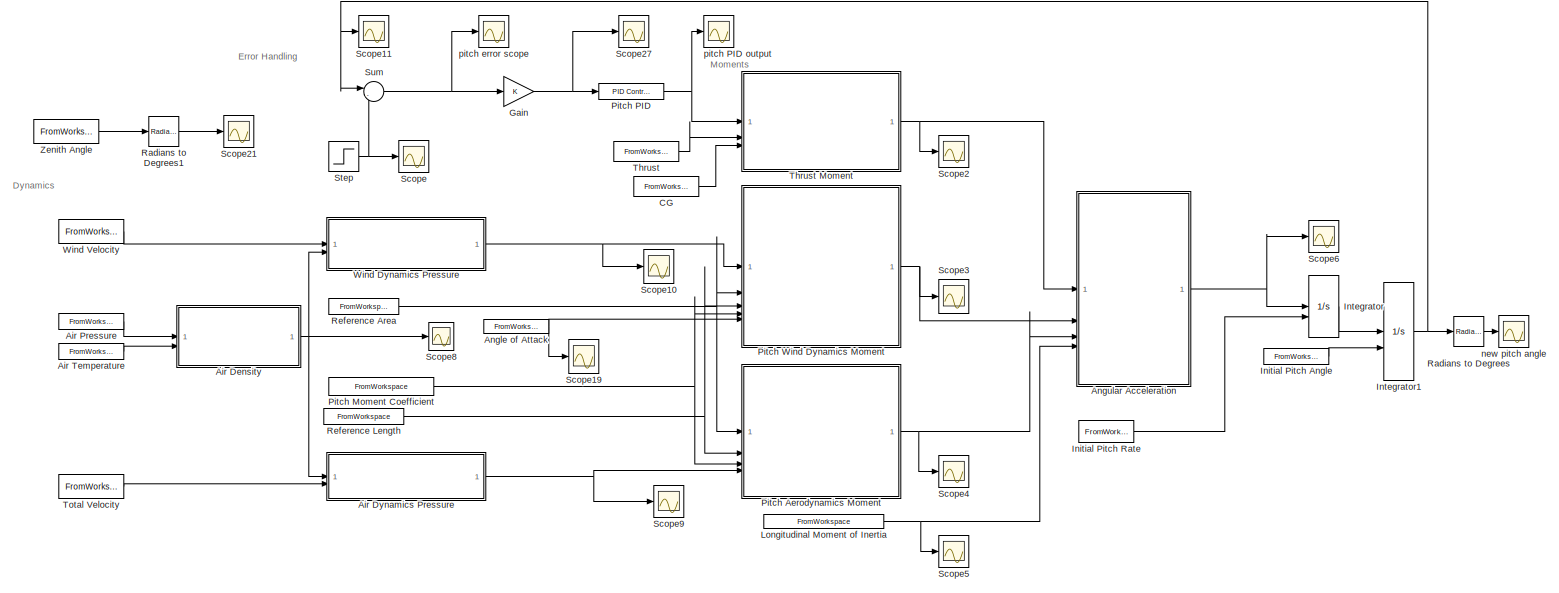
[diagram: root canvas - part 1/2, full width, top band]
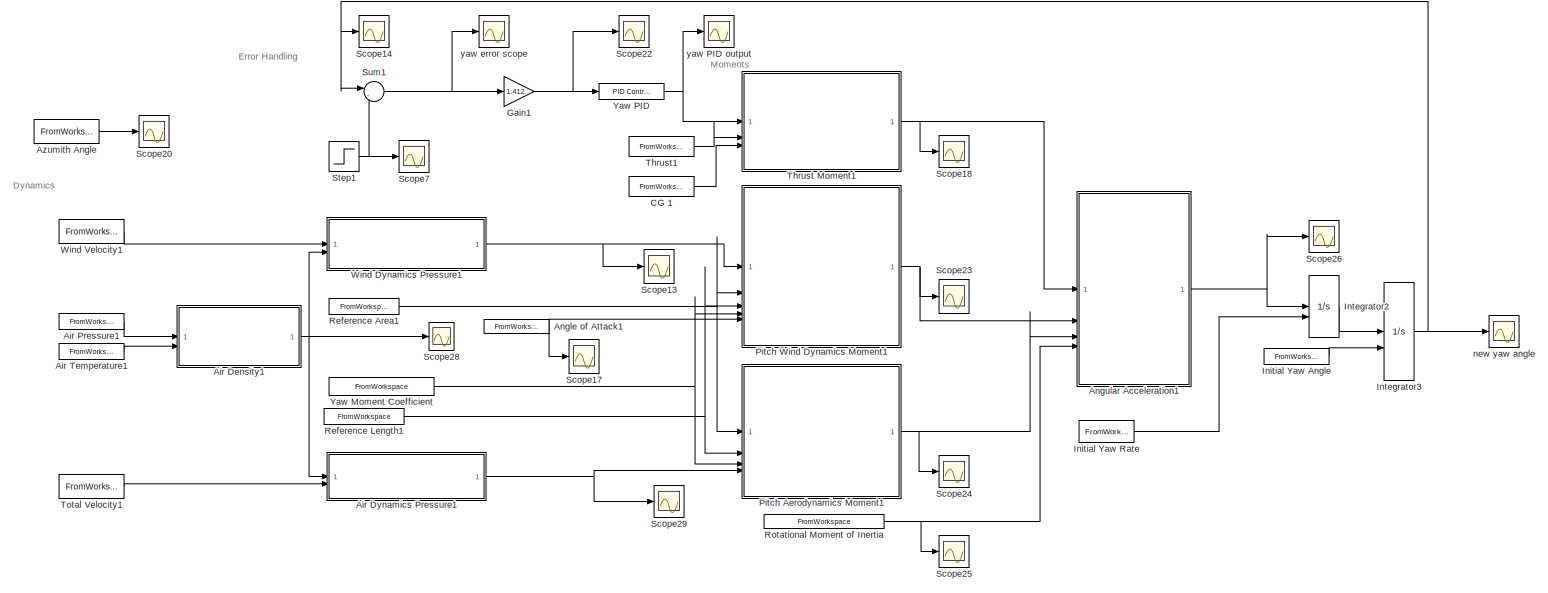
[diagram: root canvas - part 2/2, full width, bottom band]
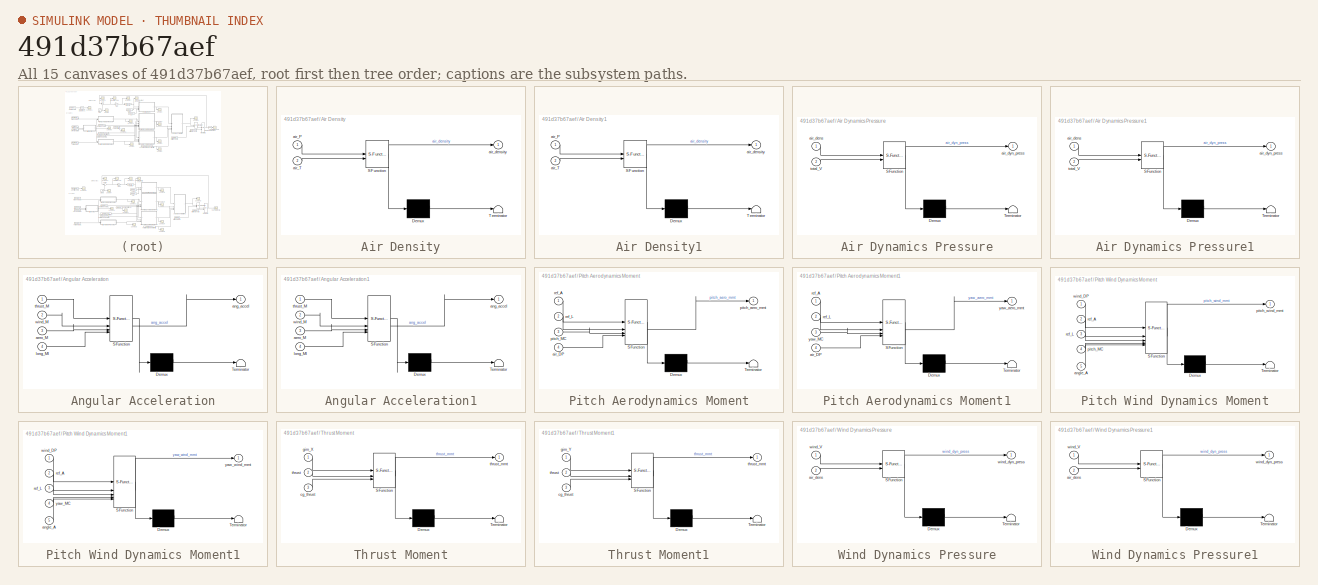
[diagram: thumbnail index - all 15 canvases of the model, root first then tree order]
MODEL slx_491d37b67aef
KIND model
CONFIG AbsTol = auto
CONFIG EnableMultiTasking = off
CONFIG FixedStep = auto
CONFIG MaxStep = auto
CONFIG MinStep = auto
CONFIG RelTol = 1e-3
CONFIG SampleTimeConstraint = Unconstrained
CONFIG SolverName = VariableStepAuto
CONFIG StartTime = 0.0
CONFIG StopTime = 1.7
BLOCK [SubSystem] Air Density
  ErrorFcn = Stateflow.Translate.translate
  PermitHierarchicalResolution = ExplicitOnly
  SFBlockType = MATLAB Function
  TreatAsAtomicUnit = on
BLOCK [Demux] Air Density/ Demux 
  Outputs = 1
BLOCK [S-Function] Air Density/ SFunction 
  EnableBusSupport = on
  FunctionName = sf_sfun
  PortCounts = [2 2]
  SFcnIsStateOwnerBlock = off
  SFunctionDeploymentMode = off
  Tag = Stateflow S-Function 2
BLOCK [Terminator] Air Density/ Terminator 
BLOCK [Inport] Air Density/air_P
BLOCK [Inport] Air Density/air_T
  Port = 2
BLOCK [Outport] Air Density/air_density
BLOCK [SubSystem] Air Density1
  ErrorFcn = Stateflow.Translate.translate
  PermitHierarchicalResolution = ExplicitOnly
  SFBlockType = MATLAB Function
  TreatAsAtomicUnit = on
BLOCK [Demux] Air Density1/ Demux 
  Outputs = 1
BLOCK [S-Function] Air Density1/ SFunction 
  EnableBusSupport = on
  FunctionName = sf_sfun
  PortCounts = [2 2]
  SFcnIsStateOwnerBlock = off
  SFunctionDeploymentMode = off
  Tag = Stateflow S-Function 8
BLOCK [Terminator] Air Density1/ Terminator 
BLOCK [Inport] Air Density1/air_P
BLOCK [Inport] Air Density1/air_T
  Port = 2
BLOCK [Outport] Air Density1/air_density
BLOCK [SubSystem] Air Dynamics Pressure
  ErrorFcn = Stateflow.Translate.translate
  PermitHierarchicalResolution = ExplicitOnly
  SFBlockType = MATLAB Function
  TreatAsAtomicUnit = on
BLOCK [Demux] Air Dynamics Pressure/ Demux 
  Outputs = 1
BLOCK [S-Function] Air Dynamics Pressure/ SFunction 
  EnableBusSupport = on
  FunctionName = sf_sfun
  PortCounts = [2 2]
  SFcnIsStateOwnerBlock = off
  SFunctionDeploymentMode = off
  Tag = Stateflow S-Function 1
BLOCK [Terminator] Air Dynamics Pressure/ Terminator 
BLOCK [Inport] Air Dynamics Pressure/air_dens
BLOCK [Outport] Air Dynamics Pressure/air_dyn_press
BLOCK [Inport] Air Dynamics Pressure/total_V
  Port = 2
BLOCK [SubSystem] Air Dynamics Pressure1
  ErrorFcn = Stateflow.Translate.translate
  PermitHierarchicalResolution = ExplicitOnly
  SFBlockType = MATLAB Function
  TreatAsAtomicUnit = on
BLOCK [Demux] Air Dynamics Pressure1/ Demux 
  Outputs = 1
BLOCK [S-Function] Air Dynamics Pressure1/ SFunction 
  EnableBusSupport = on
  FunctionName = sf_sfun
  PortCounts = [2 2]
  SFcnIsStateOwnerBlock = off
  SFunctionDeploymentMode = off
  Tag = Stateflow S-Function 9
BLOCK [Terminator] Air Dynamics Pressure1/ Terminator 
BLOCK [Inport] Air Dynamics Pressure1/air_dens
BLOCK [Outport] Air Dynamics Pressure1/air_dyn_press
BLOCK [Inport] Air Dynamics Pressure1/total_V
  Port = 2
BLOCK [FromWorkspace] Air Pressure
  VariableName = air_press
BLOCK [FromWorkspace] Air Pressure1
  VariableName = air_press
BLOCK [FromWorkspace] Air Temperature
  VariableName = air_temp
BLOCK [FromWorkspace] Air Temperature1
  VariableName = air_temp
BLOCK [FromWorkspace] Angle of Attack
  VariableName = AoA
BLOCK [FromWorkspace] Angle of Attack1
  VariableName = AoA
BLOCK [SubSystem] Angular Acceleration
  ErrorFcn = Stateflow.Translate.translate
  PermitHierarchicalResolution = ExplicitOnly
  SFBlockType = MATLAB Function
  TreatAsAtomicUnit = on
BLOCK [Demux] Angular Acceleration/ Demux 
  Outputs = 1
BLOCK [S-Function] Angular Acceleration/ SFunction 
  EnableBusSupport = on
  FunctionName = sf_sfun
  PortCounts = [4 2]
  SFcnIsStateOwnerBlock = off
  SFunctionDeploymentMode = off
  Tag = Stateflow S-Function 7
BLOCK [Terminator] Angular Acceleration/ Terminator 
BLOCK [Inport] Angular Acceleration/aero_M
  Port = 3
BLOCK [Outport] Angular Acceleration/ang_accel
BLOCK [Inport] Angular Acceleration/long_MI
  Port = 4
BLOCK [Inport] Angular Acceleration/thrust_M
BLOCK [Inport] Angular Acceleration/wind_M
  Port = 2
BLOCK [SubSystem] Angular Acceleration1
  ErrorFcn = Stateflow.Translate.translate
  PermitHierarchicalResolution = ExplicitOnly
  SFBlockType = MATLAB Function
  TreatAsAtomicUnit = on
BLOCK [Demux] Angular Acceleration1/ Demux 
  Outputs = 1
BLOCK [S-Function] Angular Acceleration1/ SFunction 
  EnableBusSupport = on
  FunctionName = sf_sfun
  PortCounts = [4 2]
  SFcnIsStateOwnerBlock = off
  SFunctionDeploymentMode = off
  Tag = Stateflow S-Function 10
BLOCK [Terminator] Angular Acceleration1/ Terminator 
BLOCK [Inport] Angular Acceleration1/aero_M
  Port = 3
BLOCK [Outport] Angular Acceleration1/ang_accel
BLOCK [Inport] Angular Acceleration1/long_MI
  Port = 4
BLOCK [Inport] Angular Acceleration1/thrust_M
BLOCK [Inport] Angular Acceleration1/wind_M
  Port = 2
BLOCK [FromWorkspace] Azumith Angle
  VariableName = theta_azimuth
BLOCK [FromWorkspace] CG 
  VariableName = CG_location
BLOCK [FromWorkspace] CG 1
  VariableName = CG_location
BLOCK [Gain] Gain
BLOCK [Gain] Gain1
  Gain = 1.412
BLOCK [FromWorkspace] Initial Pitch Angle
  VariableName = init_pitch_angle
BLOCK [FromWorkspace] Initial Pitch Rate
  VariableName = init_pitch_rate
BLOCK [FromWorkspace] Initial Yaw Angle
  VariableName = init_yaw_angle
BLOCK [FromWorkspace] Initial Yaw Rate
  VariableName = init_yaw_rate
BLOCK [Integrator] Integrator
  InitialConditionSource = external
BLOCK [Integrator] Integrator1
  InitialConditionSource = external
BLOCK [Integrator] Integrator2
  InitialConditionSource = external
BLOCK [Integrator] Integrator3
  InitialConditionSource = external
BLOCK [FromWorkspace] Longitudinal Moment of Inertia
  VariableName = long_moment_inert
BLOCK [SubSystem] Pitch Aerodynamics Moment
  ErrorFcn = Stateflow.Translate.translate
  PermitHierarchicalResolution = ExplicitOnly
  SFBlockType = MATLAB Function
  TreatAsAtomicUnit = on
BLOCK [Demux] Pitch Aerodynamics Moment/ Demux 
  Outputs = 1
BLOCK [S-Function] Pitch Aerodynamics Moment/ SFunction 
  EnableBusSupport = on
  FunctionName = sf_sfun
  PortCounts = [4 2]
  SFcnIsStateOwnerBlock = off
  SFunctionDeploymentMode = off
  Tag = Stateflow S-Function 5
BLOCK [Terminator] Pitch Aerodynamics Moment/ Terminator 
BLOCK [Inport] Pitch Aerodynamics Moment/air_DP
  Port = 4
BLOCK [Inport] Pitch Aerodynamics Moment/pitch_MC
  Port = 3
BLOCK [Outport] Pitch Aerodynamics Moment/pitch_aero_mmt
BLOCK [Inport] Pitch Aerodynamics Moment/ref_A
BLOCK [Inport] Pitch Aerodynamics Moment/ref_L
  Port = 2
BLOCK [SubSystem] Pitch Aerodynamics Moment1
  ErrorFcn = Stateflow.Translate.translate
  PermitHierarchicalResolution = ExplicitOnly
  SFBlockType = MATLAB Function
  TreatAsAtomicUnit = on
BLOCK [Demux] Pitch Aerodynamics Moment1/ Demux 
  Outputs = 1
BLOCK [S-Function] Pitch Aerodynamics Moment1/ SFunction 
  EnableBusSupport = on
  FunctionName = sf_sfun
  PortCounts = [4 2]
  SFcnIsStateOwnerBlock = off
  SFunctionDeploymentMode = off
  Tag = Stateflow S-Function 11
BLOCK [Terminator] Pitch Aerodynamics Moment1/ Terminator 
BLOCK [Inport] Pitch Aerodynamics Moment1/air_DP
  Port = 4
BLOCK [Inport] Pitch Aerodynamics Moment1/ref_A
BLOCK [Inport] Pitch Aerodynamics Moment1/ref_L
  Port = 2
BLOCK [Inport] Pitch Aerodynamics Moment1/yaw_MC
  Port = 3
BLOCK [Outport] Pitch Aerodynamics Moment1/yaw_aero_mmt
BLOCK [FromWorkspace] Pitch Moment Coefficient
  VariableName = pitch_moment_coeff
BLOCK [Reference] Pitch PID  REF=slpidlib/PID Controller
  LibrarySourceBlock = simulink/Continuous/PID Controller
  SourceBlock = slpidlib/PID Controller
  SourceType = PID 1dof
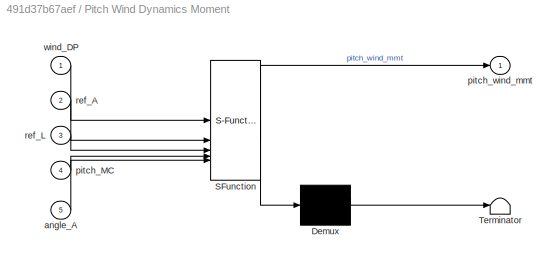
BLOCK [SubSystem] Pitch Wind Dynamics Moment
  ErrorFcn = Stateflow.Translate.translate
  PermitHierarchicalResolution = ExplicitOnly
  SFBlockType = MATLAB Function
  TreatAsAtomicUnit = on
BLOCK [Demux] Pitch Wind Dynamics Moment/ Demux 
  Outputs = 1
BLOCK [S-Function] Pitch Wind Dynamics Moment/ SFunction 
  EnableBusSupport = on
  FunctionName = sf_sfun
  PortCounts = [5 2]
  SFcnIsStateOwnerBlock = off
  SFunctionDeploymentMode = off
  Tag = Stateflow S-Function 4
BLOCK [Terminator] Pitch Wind Dynamics Moment/ Terminator 
BLOCK [Inport] Pitch Wind Dynamics Moment/angle_A
  Port = 5
BLOCK [Inport] Pitch Wind Dynamics Moment/pitch_MC
  Port = 4
BLOCK [Outport] Pitch Wind Dynamics Moment/pitch_wind_mmt
BLOCK [Inport] Pitch Wind Dynamics Moment/ref_A
  Port = 2
BLOCK [Inport] Pitch Wind Dynamics Moment/ref_L
  Port = 3
BLOCK [Inport] Pitch Wind Dynamics Moment/wind_DP
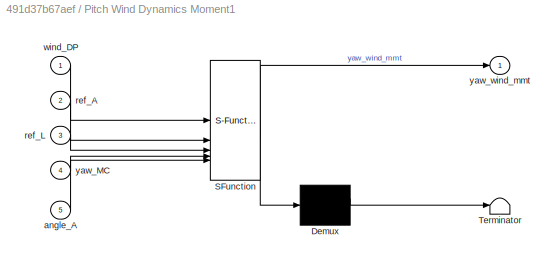
BLOCK [SubSystem] Pitch Wind Dynamics Moment1
  ErrorFcn = Stateflow.Translate.translate
  PermitHierarchicalResolution = ExplicitOnly
  SFBlockType = MATLAB Function
  TreatAsAtomicUnit = on
BLOCK [Demux] Pitch Wind Dynamics Moment1/ Demux 
  Outputs = 1
BLOCK [S-Function] Pitch Wind Dynamics Moment1/ SFunction 
  EnableBusSupport = on
  FunctionName = sf_sfun
  PortCounts = [5 2]
  SFcnIsStateOwnerBlock = off
  SFunctionDeploymentMode = off
  Tag = Stateflow S-Function 12
BLOCK [Terminator] Pitch Wind Dynamics Moment1/ Terminator 
BLOCK [Inport] Pitch Wind Dynamics Moment1/angle_A
  Port = 5
BLOCK [Inport] Pitch Wind Dynamics Moment1/ref_A
  Port = 2
BLOCK [Inport] Pitch Wind Dynamics Moment1/ref_L
  Port = 3
BLOCK [Inport] Pitch Wind Dynamics Moment1/wind_DP
BLOCK [Inport] Pitch Wind Dynamics Moment1/yaw_MC
  Port = 4
BLOCK [Outport] Pitch Wind Dynamics Moment1/yaw_wind_mmt
BLOCK [Reference] Radians to Degrees  REF=simulink_extras/Transformations/Radians
to Degrees
  SourceBlock = simulink_extras/Transformations/Radians\nto Degrees
  SourceType = RadiansToDegrees
BLOCK [Reference] Radians to Degrees1  REF=simulink_extras/Transformations/Radians
to Degrees
  SourceBlock = simulink_extras/Transformations/Radians\nto Degrees
  SourceType = RadiansToDegrees
BLOCK [FromWorkspace] Reference Area
  VariableName = ref_area
BLOCK [FromWorkspace] Reference Area1
  VariableName = ref_area
BLOCK [FromWorkspace] Reference Length
  VariableName = ref_length
BLOCK [FromWorkspace] Reference Length1
  VariableName = ref_length
BLOCK [FromWorkspace] Rotational Moment of Inertia
  VariableName = rot_moment_inert
BLOCK [Scope] Scope
  Floating = off
  NumInputPorts = 1
  ScopeSpecificationString = Simulink.scopes.TimeScopeBlockCfg('CurrentConfiguration', extmgr.ConfigurationSet(extmgr.Configuration('Core','General UI',true),extmgr.Configuration('Core','Source UI',true),extmgr.Configuration('Sources','WiredSimulink',true,'DataLoggingVariableName','ScopeData2'),extmgr.Configuration('Visuals','Time Domain',true,'SerializedDisplays',{struct('MinYLimReal','0.78008','MaxYLimReal','0.78866','YLabe...<+1535ch>
BLOCK [Scope] Scope10
  Floating = off
  NumInputPorts = 1
  ScopeSpecificationString = Simulink.scopes.TimeScopeBlockCfg('CurrentConfiguration', extmgr.ConfigurationSet(extmgr.Configuration('Core','General UI',true),extmgr.Configuration('Core','Source UI',true),extmgr.Configuration('Sources','WiredSimulink',true,'DataLoggingVariableName','ScopeData9'),extmgr.Configuration('Visuals','Time Domain',true,'SerializedDisplays',{struct('MinYLimReal','2.00036','MaxYLimReal','2.7141','YLabel...<+1493ch>
BLOCK [Scope] Scope11
  Floating = off
  NumInputPorts = 1
  ScopeSpecificationString = Simulink.scopes.TimeScopeBlockCfg('CurrentConfiguration', extmgr.ConfigurationSet(extmgr.Configuration('Core','General UI',true),extmgr.Configuration('Core','Source UI',true),extmgr.Configuration('Sources','WiredSimulink',true,'DataLoggingVariableName','ScopeData10'),extmgr.Configuration('Visuals','Time Domain',true,'SerializedDisplays',{struct('MinYLimReal','-97.73296','MaxYLimReal','12.60437','Y...<+1493ch>
BLOCK [Scope] Scope13
  Floating = off
  NumInputPorts = 1
  ScopeSpecificationString = Simulink.scopes.TimeScopeBlockCfg('CurrentConfiguration', extmgr.ConfigurationSet(extmgr.Configuration('Core','General UI',true),extmgr.Configuration('Core','Source UI',true),extmgr.Configuration('Sources','WiredSimulink',true,'DataLoggingVariableName','ScopeData2'),extmgr.Configuration('Visuals','Time Domain',true,'SerializedDisplays',{struct('MinYLimReal','2.00036','MaxYLimReal','2.7141','YLabel...<+1493ch>
BLOCK [Scope] Scope14
  Floating = off
  NumInputPorts = 1
  ScopeSpecificationString = Simulink.scopes.TimeScopeBlockCfg('CurrentConfiguration', extmgr.ConfigurationSet(extmgr.Configuration('Core','General UI',true),extmgr.Configuration('Core','Source UI',true),extmgr.Configuration('Sources','WiredSimulink',true,'DataLoggingVariableName','ScopeData3'),extmgr.Configuration('Visuals','Time Domain',true,'SerializedDisplays',{struct('MinYLimReal','-1.18665','MaxYLimReal','3.68832','YLab...<+1486ch>
BLOCK [Scope] Scope17
  Floating = off
  NumInputPorts = 1
  ScopeSpecificationString = Simulink.scopes.TimeScopeBlockCfg('CurrentConfiguration', extmgr.ConfigurationSet(extmgr.Configuration('Core','General UI',true),extmgr.Configuration('Core','Source UI',true),extmgr.Configuration('Sources','WiredSimulink',true,'DataLoggingVariableName','ScopeData5'),extmgr.Configuration('Visuals','Time Domain',true,'SerializedDisplays',{struct('MinYLimReal','-0.35999','MaxYLimReal','3.4868','YLabe...<+1515ch>
BLOCK [Scope] Scope18
  Floating = off
  NumInputPorts = 1
  ScopeSpecificationString = Simulink.scopes.TimeScopeBlockCfg('CurrentConfiguration', extmgr.ConfigurationSet(extmgr.Configuration('Core','General UI',true),extmgr.Configuration('Core','Source UI',true),extmgr.Configuration('Sources','WiredSimulink',true,'DataLoggingVariableName','ScopeData6'),extmgr.Configuration('Visuals','Time Domain',true,'SerializedDisplays',{struct('MinYLimReal','-6.53811','MaxYLimReal','6.84582','YLab...<+1488ch>
BLOCK [Scope] Scope19
  Floating = off
  NumInputPorts = 1
  ScopeSpecificationString = Simulink.scopes.TimeScopeBlockCfg('CurrentConfiguration', extmgr.ConfigurationSet(extmgr.Configuration('Core','General UI',true),extmgr.Configuration('Core','Source UI',true),extmgr.Configuration('Sources','WiredSimulink',true,'DataLoggingVariableName','ScopeData18'),extmgr.Configuration('Visuals','Time Domain',true,'SerializedDisplays',{struct('MinYLimReal','-0.35999','MaxYLimReal','3.4868','YLab...<+1516ch>
BLOCK [Scope] Scope2
  Floating = off
  NumInputPorts = 1
  ScopeSpecificationString = Simulink.scopes.TimeScopeBlockCfg('CurrentConfiguration', extmgr.ConfigurationSet(extmgr.Configuration('Core','General UI',true),extmgr.Configuration('Core','Source UI',true),extmgr.Configuration('Sources','WiredSimulink',true,'DataLoggingVariableName','ScopeData1'),extmgr.Configuration('Visuals','Time Domain',true,'SerializedDisplays',{struct('MinYLimReal','-6.53811','MaxYLimReal','6.84582','YLab...<+1488ch>
BLOCK [Scope] Scope20
  Floating = off
  NumInputPorts = 1
  ScopeSpecificationString = Simulink.scopes.TimeScopeBlockCfg('CurrentConfiguration', extmgr.ConfigurationSet(extmgr.Configuration('Core','General UI',true),extmgr.Configuration('Core','Source UI',true),extmgr.Configuration('Sources','WiredSimulink',true,'DataLoggingVariableName','ScopeData7'),extmgr.Configuration('Visuals','Time Domain',true,'SerializedDisplays',{struct('MinYLimReal','-1.92578','MaxYLimReal','1.97009','YLab...<+1490ch>
BLOCK [Scope] Scope21
  Floating = off
  NumInputPorts = 1
  ScopeSpecificationString = Simulink.scopes.TimeScopeBlockCfg('CurrentConfiguration', extmgr.ConfigurationSet(extmgr.Configuration('Core','General UI',true),extmgr.Configuration('Core','Source UI',true),extmgr.Configuration('Sources','WiredSimulink',true,'DataLoggingVariableName','ScopeData20'),extmgr.Configuration('Visuals','Time Domain',true,'SerializedDisplays',{struct('MinYLimReal','-111.81731','MaxYLimReal','112.74415',...<+1509ch>
BLOCK [Scope] Scope22
  Floating = off
  NumInputPorts = 1
  ScopeSpecificationString = Simulink.scopes.TimeScopeBlockCfg('CurrentConfiguration', extmgr.ConfigurationSet(extmgr.Configuration('Core','General UI',true),extmgr.Configuration('Core','Source UI',true),extmgr.Configuration('Sources','WiredSimulink',true,'DataLoggingVariableName','ScopeData8'),extmgr.Configuration('Visuals','Time Domain',true,'SerializedDisplays',{struct('MinYLimReal','-5.2079','MaxYLimReal','1.67555','YLabe...<+1479ch>
BLOCK [Scope] Scope23
  Floating = off
  NumInputPorts = 1
  ScopeSpecificationString = Simulink.scopes.TimeScopeBlockCfg('CurrentConfiguration', extmgr.ConfigurationSet(extmgr.Configuration('Core','General UI',true),extmgr.Configuration('Core','Source UI',true),extmgr.Configuration('Sources','WiredSimulink',true,'DataLoggingVariableName','ScopeData9'),extmgr.Configuration('Visuals','Time Domain',true,'SerializedDisplays',{struct('MinYLimReal','-0.0038','MaxYLimReal','0.00118','YLabe...<+1497ch>
BLOCK [Scope] Scope24
  Floating = off
  NumInputPorts = 1
  ScopeSpecificationString = Simulink.scopes.TimeScopeBlockCfg('CurrentConfiguration', extmgr.ConfigurationSet(extmgr.Configuration('Core','General UI',true),extmgr.Configuration('Core','Source UI',true),extmgr.Configuration('Sources','WiredSimulink',true,'DataLoggingVariableName','ScopeData10'),extmgr.Configuration('Visuals','Time Domain',true,'SerializedDisplays',{struct('MinYLimReal','-0.57754','MaxYLimReal','0.2573','YLab...<+1499ch>
BLOCK [Scope] Scope25
  Floating = off
  NumInputPorts = 1
  ScopeSpecificationString = Simulink.scopes.TimeScopeBlockCfg('CurrentConfiguration', extmgr.ConfigurationSet(extmgr.Configuration('Core','General UI',true),extmgr.Configuration('Core','Source UI',true),extmgr.Configuration('Sources','WiredSimulink',true,'DataLoggingVariableName','ScopeData11'),extmgr.Configuration('Visuals','Time Domain',true,'SerializedDisplays',{struct('MinYLimReal','0.000569','MaxYLimReal','0.000628','YL...<+1531ch>
BLOCK [Scope] Scope26
  Floating = off
  NumInputPorts = 1
  ScopeSpecificationString = Simulink.scopes.TimeScopeBlockCfg('CurrentConfiguration', extmgr.ConfigurationSet(extmgr.Configuration('Core','General UI',true),extmgr.Configuration('Core','Source UI',true),extmgr.Configuration('Sources','WiredSimulink',true,'DataLoggingVariableName','ScopeData12'),extmgr.Configuration('Visuals','Time Domain',true,'SerializedDisplays',{struct('MinYLimReal','-55.90094','MaxYLimReal','35.61032','Y...<+1521ch>
BLOCK [Scope] Scope27
  Floating = off
  NumInputPorts = 1
  ScopeSpecificationString = Simulink.scopes.TimeScopeBlockCfg('CurrentConfiguration', extmgr.ConfigurationSet(extmgr.Configuration('Core','General UI',true),extmgr.Configuration('Core','Source UI',true),extmgr.Configuration('Sources','WiredSimulink',true,'DataLoggingVariableName','ScopeData26'),extmgr.Configuration('Visuals','Time Domain',true,'SerializedDisplays',{struct('MinYLimReal','-9.30207','MaxYLimReal','61.54122','YL...<+1487ch>
BLOCK [Scope] Scope28
  Floating = off
  NumInputPorts = 1
  ScopeSpecificationString = Simulink.scopes.TimeScopeBlockCfg('CurrentConfiguration', extmgr.ConfigurationSet(extmgr.Configuration('Core','General UI',true),extmgr.Configuration('Core','Source UI',true),extmgr.Configuration('Sources','WiredSimulink',true,'DataLoggingVariableName','ScopeData13'),extmgr.Configuration('Visuals','Time Domain',true,'SerializedDisplays',{struct('MinYLimReal','1.22252','MaxYLimReal','1.22566','YLab...<+1485ch>
BLOCK [Scope] Scope29
  Floating = off
  NumInputPorts = 1
  ScopeSpecificationString = Simulink.scopes.TimeScopeBlockCfg('CurrentConfiguration', extmgr.ConfigurationSet(extmgr.Configuration('Core','General UI',true),extmgr.Configuration('Core','Source UI',true),extmgr.Configuration('Sources','WiredSimulink',true,'DataLoggingVariableName','ScopeData14'),extmgr.Configuration('Visuals','Time Domain',true,'SerializedDisplays',{struct('MinYLimReal','-82.73797','MaxYLimReal','745.03054','...<+1510ch>
BLOCK [Scope] Scope3
  Floating = off
  NumInputPorts = 1
  ScopeSpecificationString = Simulink.scopes.TimeScopeBlockCfg('CurrentConfiguration', extmgr.ConfigurationSet(extmgr.Configuration('Core','General UI',true),extmgr.Configuration('Core','Source UI',true),extmgr.Configuration('Sources','WiredSimulink',true,'DataLoggingVariableName','ScopeData2'),extmgr.Configuration('Visuals','Time Domain',true,'SerializedDisplays',{struct('MinYLimReal','-0.0038','MaxYLimReal','0.00118','YLabe...<+1497ch>
BLOCK [Scope] Scope4
  Floating = off
  NumInputPorts = 1
  ScopeSpecificationString = Simulink.scopes.TimeScopeBlockCfg('CurrentConfiguration', extmgr.ConfigurationSet(extmgr.Configuration('Core','General UI',true),extmgr.Configuration('Core','Source UI',true),extmgr.Configuration('Sources','WiredSimulink',true,'DataLoggingVariableName','ScopeData3'),extmgr.Configuration('Visuals','Time Domain',true,'SerializedDisplays',{struct('MinYLimReal','-0.57754','MaxYLimReal','0.2573','YLabe...<+1498ch>
BLOCK [Scope] Scope5
  Floating = off
  NumInputPorts = 1
  ScopeSpecificationString = Simulink.scopes.TimeScopeBlockCfg('CurrentConfiguration', extmgr.ConfigurationSet(extmgr.Configuration('Core','General UI',true),extmgr.Configuration('Core','Source UI',true),extmgr.Configuration('Sources','WiredSimulink',true,'DataLoggingVariableName','ScopeData4'),extmgr.Configuration('Visuals','Time Domain',true,'SerializedDisplays',{struct('MinYLimReal','0.000569','MaxYLimReal','0.000628','YLa...<+1530ch>
BLOCK [Scope] Scope6
  Floating = off
  NumInputPorts = 1
  ScopeSpecificationString = Simulink.scopes.TimeScopeBlockCfg('CurrentConfiguration', extmgr.ConfigurationSet(extmgr.Configuration('Core','General UI',true),extmgr.Configuration('Core','Source UI',true),extmgr.Configuration('Sources','WiredSimulink',true,'DataLoggingVariableName','ScopeData5'),extmgr.Configuration('Visuals','Time Domain',true,'SerializedDisplays',{struct('MinYLimReal','-55.90094','MaxYLimReal','35.61032','YL...<+1520ch>
BLOCK [Scope] Scope7
  Floating = off
  NumInputPorts = 1
  ScopeSpecificationString = Simulink.scopes.TimeScopeBlockCfg('CurrentConfiguration', extmgr.ConfigurationSet(extmgr.Configuration('Core','General UI',true),extmgr.Configuration('Core','Source UI',true),extmgr.Configuration('Sources','WiredSimulink',true,'DataLoggingVariableName','ScopeData15'),extmgr.Configuration('Visuals','Time Domain',true,'SerializedDisplays',{struct('MinYLimReal','0.78008','MaxYLimReal','0.78866','YLab...<+1536ch>
BLOCK [Scope] Scope8
  Floating = off
  NumInputPorts = 1
  ScopeSpecificationString = Simulink.scopes.TimeScopeBlockCfg('CurrentConfiguration', extmgr.ConfigurationSet(extmgr.Configuration('Core','General UI',true),extmgr.Configuration('Core','Source UI',true),extmgr.Configuration('Sources','WiredSimulink',true,'DataLoggingVariableName','ScopeData7'),extmgr.Configuration('Visuals','Time Domain',true,'SerializedDisplays',{struct('MinYLimReal','1.22252','MaxYLimReal','1.22566','YLabe...<+1484ch>
BLOCK [Scope] Scope9
  Floating = off
  NumInputPorts = 1
  ScopeSpecificationString = Simulink.scopes.TimeScopeBlockCfg('CurrentConfiguration', extmgr.ConfigurationSet(extmgr.Configuration('Core','General UI',true),extmgr.Configuration('Core','Source UI',true),extmgr.Configuration('Sources','WiredSimulink',true,'DataLoggingVariableName','ScopeData8'),extmgr.Configuration('Visuals','Time Domain',true,'SerializedDisplays',{struct('MinYLimReal','-82.73797','MaxYLimReal','745.03054','Y...<+1509ch>
BLOCK [Step] Step
  After = 0
  SampleTime = 0
  Time = 0
BLOCK [Step] Step1
  After = 0
  SampleTime = 0
  Time = 0
BLOCK [Sum] Sum
  Inputs = |-+
BLOCK [Sum] Sum1
  Inputs = |-+
BLOCK [FromWorkspace] Thrust
  VariableName = thrust
BLOCK [SubSystem] Thrust Moment
  ErrorFcn = Stateflow.Translate.translate
  PermitHierarchicalResolution = ExplicitOnly
  SFBlockType = MATLAB Function
  TreatAsAtomicUnit = on
BLOCK [Demux] Thrust Moment/ Demux 
  Outputs = 1
BLOCK [S-Function] Thrust Moment/ SFunction 
  EnableBusSupport = on
  FunctionName = sf_sfun
  PortCounts = [3 2]
  SFcnIsStateOwnerBlock = off
  SFunctionDeploymentMode = off
  Tag = Stateflow S-Function 6
BLOCK [Terminator] Thrust Moment/ Terminator 
BLOCK [Inport] Thrust Moment/cg_thrust
  Port = 3
BLOCK [Inport] Thrust Moment/gim_X
BLOCK [Inport] Thrust Moment/thrust
  Port = 2
BLOCK [Outport] Thrust Moment/thrust_mmt
BLOCK [SubSystem] Thrust Moment1
  ErrorFcn = Stateflow.Translate.translate
  PermitHierarchicalResolution = ExplicitOnly
  SFBlockType = MATLAB Function
  TreatAsAtomicUnit = on
BLOCK [Demux] Thrust Moment1/ Demux 
  Outputs = 1
BLOCK [S-Function] Thrust Moment1/ SFunction 
  EnableBusSupport = on
  FunctionName = sf_sfun
  PortCounts = [3 2]
  SFcnIsStateOwnerBlock = off
  SFunctionDeploymentMode = off
  Tag = Stateflow S-Function 13
BLOCK [Terminator] Thrust Moment1/ Terminator 
BLOCK [Inport] Thrust Moment1/cg_thrust
  Port = 3
BLOCK [Inport] Thrust Moment1/gim_Y
BLOCK [Inport] Thrust Moment1/thrust
  Port = 2
BLOCK [Outport] Thrust Moment1/thrust_mmt
BLOCK [FromWorkspace] Thrust1
  VariableName = thrust
BLOCK [FromWorkspace] Total Velocity
  VariableName = total_velocity
BLOCK [FromWorkspace] Total Velocity1
  VariableName = total_velocity
BLOCK [SubSystem] Wind Dynamics Pressure
  ErrorFcn = Stateflow.Translate.translate
  PermitHierarchicalResolution = ExplicitOnly
  SFBlockType = MATLAB Function
  TreatAsAtomicUnit = on
BLOCK [Demux] Wind Dynamics Pressure/ Demux 
  Outputs = 1
BLOCK [S-Function] Wind Dynamics Pressure/ SFunction 
  EnableBusSupport = on
  FunctionName = sf_sfun
  PortCounts = [2 2]
  SFcnIsStateOwnerBlock = off
  SFunctionDeploymentMode = off
  Tag = Stateflow S-Function 3
BLOCK [Terminator] Wind Dynamics Pressure/ Terminator 
BLOCK [Inport] Wind Dynamics Pressure/air_dens
  Port = 2
BLOCK [Inport] Wind Dynamics Pressure/wind_V
BLOCK [Outport] Wind Dynamics Pressure/wind_dyn_press
BLOCK [SubSystem] Wind Dynamics Pressure1
  ErrorFcn = Stateflow.Translate.translate
  PermitHierarchicalResolution = ExplicitOnly
  SFBlockType = MATLAB Function
  TreatAsAtomicUnit = on
BLOCK [Demux] Wind Dynamics Pressure1/ Demux 
  Outputs = 1
BLOCK [S-Function] Wind Dynamics Pressure1/ SFunction 
  EnableBusSupport = on
  FunctionName = sf_sfun
  PortCounts = [2 2]
  SFcnIsStateOwnerBlock = off
  SFunctionDeploymentMode = off
  Tag = Stateflow S-Function 14
BLOCK [Terminator] Wind Dynamics Pressure1/ Terminator 
BLOCK [Inport] Wind Dynamics Pressure1/air_dens
  Port = 2
BLOCK [Inport] Wind Dynamics Pressure1/wind_V
BLOCK [Outport] Wind Dynamics Pressure1/wind_dyn_press
BLOCK [FromWorkspace] Wind Velocity
  VariableName = wind_velocity
BLOCK [FromWorkspace] Wind Velocity1
  VariableName = wind_velocity
BLOCK [FromWorkspace] Yaw Moment Coefficient
  VariableName = yaw_moment_coeff
BLOCK [Reference] Yaw PID  REF=slpidlib/PID Controller
  LibrarySourceBlock = simulink/Continuous/PID Controller
  SourceBlock = slpidlib/PID Controller
  SourceType = PID 1dof
BLOCK [FromWorkspace] Zenith Angle
  VariableName = theta_zenith
BLOCK [Scope] new pitch angle
  Floating = off
  NumInputPorts = 1
  ScopeSpecificationString = Simulink.scopes.TimeScopeBlockCfg('CurrentConfiguration', extmgr.ConfigurationSet(extmgr.Configuration('Core','General UI',true),extmgr.Configuration('Core','Source UI',true),extmgr.Configuration('Sources','WiredSimulink',true,'DataLoggingVariableName','ScopeData3'),extmgr.Configuration('Visuals','Time Domain',true,'SerializedDisplays',{struct('MinYLimReal','-44.13351','MaxYLimReal','104.89372','Y...<+1577ch>
BLOCK [Scope] new yaw angle
  Floating = off
  NumInputPorts = 1
  ScopeSpecificationString = Simulink.scopes.TimeScopeBlockCfg('CurrentConfiguration', extmgr.ConfigurationSet(extmgr.Configuration('Core','General UI',true),extmgr.Configuration('Core','Source UI',true),extmgr.Configuration('Sources','WiredSimulink',true,'DataLoggingVariableName','ScopeData1'),extmgr.Configuration('Visuals','Time Domain',true,'SerializedDisplays',{struct('MinYLimReal','-1.11165','MaxYLimReal','3.61412','YLab...<+1486ch>
BLOCK [Scope] pitch PID output
  Floating = off
  NumInputPorts = 1
  ScopeSpecificationString = Simulink.scopes.TimeScopeBlockCfg('CurrentConfiguration', extmgr.ConfigurationSet(extmgr.Configuration('Core','General UI',true),extmgr.Configuration('Core','Source UI',true),extmgr.Configuration('Sources','WiredSimulink',true,'DataLoggingVariableName','ScopeData17'),extmgr.Configuration('Visuals','Time Domain',true,'SerializedDisplays',{struct('MinYLimReal','-2.55361','MaxYLimReal','1.16315','YLa...<+1560ch>
BLOCK [Scope] pitch error scope
  Floating = off
  NumInputPorts = 1
  ScopeSpecificationString = Simulink.scopes.TimeScopeBlockCfg('CurrentConfiguration', extmgr.ConfigurationSet(extmgr.Configuration('Core','General UI',true),extmgr.Configuration('Core','Source UI',true),extmgr.Configuration('Sources','WiredSimulink',true,'DataLoggingVariableName','ScopeData15'),extmgr.Configuration('Visuals','Time Domain',true,'SerializedDisplays',{struct('MinYLimReal','0.3543','MaxYLimReal','0.92456','YLabe...<+1495ch>
BLOCK [Scope] yaw PID output
  Floating = off
  NumInputPorts = 1
  ScopeSpecificationString = Simulink.scopes.TimeScopeBlockCfg('CurrentConfiguration', extmgr.ConfigurationSet(extmgr.Configuration('Core','General UI',true),extmgr.Configuration('Core','Source UI',true),extmgr.Configuration('Sources','WiredSimulink',true,'DataLoggingVariableName','ScopeData16'),extmgr.Configuration('Visuals','Time Domain',true,'SerializedDisplays',{struct('MinYLimReal','-0.68848','MaxYLimReal','0.08109','YLa...<+1485ch>
BLOCK [Scope] yaw error scope
  Floating = off
  NumInputPorts = 1
  ScopeSpecificationString = Simulink.scopes.TimeScopeBlockCfg('CurrentConfiguration', extmgr.ConfigurationSet(extmgr.Configuration('Core','General UI',true),extmgr.Configuration('Core','Source UI',true),extmgr.Configuration('Sources','WiredSimulink',true,'DataLoggingVariableName','ScopeData4'),extmgr.Configuration('Visuals','Time Domain',true,'SerializedDisplays',{struct('MinYLimReal','-3.61412','MaxYLimReal','1.11165','YLab...<+1482ch>
ANNOTATION (root): Dynamics
ANNOTATION (root): Error Handling
ANNOTATION (root): Moments
NET Air Density1:1 -> Air Dynamics Pressure1:1, Scope28:1, Wind Dynamics Pressure1:2
NET Air Density:1 -> Air Dynamics Pressure:1, Scope8:1, Wind Dynamics Pressure:2
NET Air Dynamics Pressure1:1 -> Pitch Aerodynamics Moment1:4, Scope29:1
NET Air Dynamics Pressure:1 -> Pitch Aerodynamics Moment:4, Scope9:1
LINE Air Pressure1:1 -> Air Density1:1
LINE Air Pressure:1 -> Air Density:1
LINE Air Temperature1:1 -> Air Density1:2
LINE Air Temperature:1 -> Air Density:2
NET Angle of Attack1:1 -> Pitch Wind Dynamics Moment1:5, Scope17:1
NET Angle of Attack:1 -> Pitch Wind Dynamics Moment:5, Scope19:1
NET Angular Acceleration1:1 -> Integrator2:1, Scope26:1
NET Angular Acceleration:1 -> Integrator:1, Scope6:1
LINE Azumith Angle:1 -> Scope20:1
LINE CG 1:1 -> Thrust Moment1:3
LINE CG :1 -> Thrust Moment:3
NET Gain1:1 -> Scope22:1, Yaw PID:1
NET Gain:1 -> Pitch PID:1, Scope27:1
LINE Initial Pitch Angle:1 -> Integrator1:2
LINE Initial Pitch Rate:1 -> Integrator:2
LINE Initial Yaw Angle:1 -> Integrator3:2
LINE Initial Yaw Rate:1 -> Integrator2:2
NET Integrator1:1 -> Radians to Degrees:1, Scope11:1, Sum:1
LINE Integrator2:1 -> Integrator3:1
NET Integrator3:1 -> Scope14:1, Sum1:1, new yaw angle:1
LINE Integrator:1 -> Integrator1:1
NET Longitudinal Moment of Inertia:1 -> Angular Acceleration:4, Scope5:1
NET Pitch Aerodynamics Moment1:1 -> Angular Acceleration1:3, Scope24:1
NET Pitch Aerodynamics Moment:1 -> Angular Acceleration:3, Scope4:1
NET Pitch Moment Coefficient:1 -> Pitch Aerodynamics Moment:3, Pitch Wind Dynamics Moment:4
NET Pitch PID:1 -> Thrust Moment:1, pitch PID output:1
NET Pitch Wind Dynamics Moment1:1 -> Angular Acceleration1:2, Scope23:1
NET Pitch Wind Dynamics Moment:1 -> Angular Acceleration:2, Scope3:1
LINE Radians to Degrees1:1 -> Scope21:1
LINE Radians to Degrees:1 -> new pitch angle:1
NET Reference Area1:1 -> Pitch Aerodynamics Moment1:1, Pitch Wind Dynamics Moment1:2
NET Reference Area:1 -> Pitch Aerodynamics Moment:1, Pitch Wind Dynamics Moment:2
NET Reference Length1:1 -> Pitch Aerodynamics Moment1:2, Pitch Wind Dynamics Moment1:3
NET Reference Length:1 -> Pitch Aerodynamics Moment:2, Pitch Wind Dynamics Moment:3
NET Rotational Moment of Inertia:1 -> Angular Acceleration1:4, Scope25:1
NET Step1:1 -> Scope7:1, Sum1:2
NET Step:1 -> Scope:1, Sum:2
NET Sum1:1 -> Gain1:1, yaw error scope:1
NET Sum:1 -> Gain:1, pitch error scope:1
NET Thrust Moment1:1 -> Angular Acceleration1:1, Scope18:1
NET Thrust Moment:1 -> Angular Acceleration:1, Scope2:1
LINE Thrust1:1 -> Thrust Moment1:2
LINE Thrust:1 -> Thrust Moment:2
LINE Total Velocity1:1 -> Air Dynamics Pressure1:2
LINE Total Velocity:1 -> Air Dynamics Pressure:2
NET Wind Dynamics Pressure1:1 -> Pitch Wind Dynamics Moment1:1, Scope13:1
NET Wind Dynamics Pressure:1 -> Pitch Wind Dynamics Moment:1, Scope10:1
LINE Wind Velocity1:1 -> Wind Dynamics Pressure1:1
LINE Wind Velocity:1 -> Wind Dynamics Pressure:1
NET Yaw Moment Coefficient:1 -> Pitch Aerodynamics Moment1:3, Pitch Wind Dynamics Moment1:4
NET Yaw PID:1 -> Thrust Moment1:1, yaw PID output:1
LINE Zenith Angle:1 -> Radians to Degrees1:1
note: NET lines group one-source signal fan-out (src -> all destinations, sorted); 1:1 wires keep LINE
CHART Pitch Aerodynamics Moment1 states=1 transitions=1
  STATE_LABEL 'eML_blk_kernel()'
  STATE_LABEL 'SCRIPT:\nfunction yaw_aero_mmt = fcn(ref_A, ref_L, yaw_MC, air_DP)\n    yaw_aero_mmt = ref_L*ref_A*yaw_MC*air_DP;\n'
CHART Air Dynamics Pressure states=1 transitions=1
  STATE_LABEL 'eML_blk_kernel()'
  STATE_LABEL 'SCRIPT:\nfunction air_dyn_press = fcn(air_dens, total_V)\n    air_dyn_press = (air_dens*total_V^2)/2;\n\n'
CHART Pitch Wind Dynamics Moment1 states=1 transitions=1
  STATE_LABEL 'eML_blk_kernel()'
  STATE_LABEL 'SCRIPT:\nfunction yaw_wind_mmt = fcn(wind_DP, ref_A, ref_L, yaw_MC, angle_A)\n\n    yaw_wind_mmt = ref_L*ref_A*wind_DP*yaw_MC*sin(angle_A);\n'
CHART Thrust Moment1 states=1 transitions=1
  STATE_LABEL 'eML_blk_kernel()'
  STATE_LABEL 'SCRIPT:\nfunction thrust_mmt = fcn(gim_Y, thrust, cg_thrust)\n    thrust_mmt = thrust*cg_thrust*sin(gim_Y);\n'
CHART Wind Dynamics Pressure1 states=1 transitions=1
  STATE_LABEL 'eML_blk_kernel()'
  STATE_LABEL 'SCRIPT:\nfunction wind_dyn_press = fcn(wind_V, air_dens)\n    wind_dyn_press = (air_dens*wind_V^2)/2;\n'
CHART Air Density states=1 transitions=1
  STATE_LABEL 'eML_blk_kernel()'
  STATE_LABEL 'SCRIPT:\nfunction air_density = fcn(air_P, air_T)\n    R = 287.05;\n    air_density = air_P/(R*(air_T));'
CHART Wind Dynamics Pressure states=1 transitions=1
  STATE_LABEL 'eML_blk_kernel()'
  STATE_LABEL 'SCRIPT:\nfunction wind_dyn_press = fcn(wind_V, air_dens)\n    wind_dyn_press = (air_dens*wind_V^2)/2;\n'
CHART Pitch Wind Dynamics Moment states=1 transitions=1
  STATE_LABEL 'eML_blk_kernel()'
  STATE_LABEL 'SCRIPT:\nfunction pitch_wind_mmt = fcn(wind_DP, ref_A, ref_L, pitch_MC, angle_A)\n\n    pitch_wind_mmt = ref_L*ref_A*wind_DP*pitch_MC*sin(angle_A);\n'
CHART Pitch Aerodynamics Moment states=1 transitions=1
  STATE_LABEL 'eML_blk_kernel()'
  STATE_LABEL 'SCRIPT:\nfunction pitch_aero_mmt = fcn(ref_A, ref_L, pitch_MC, air_DP)\n    pitch_aero_mmt = ref_L*ref_A*pitch_MC*air_DP;\n'
CHART Thrust Moment states=1 transitions=1
  STATE_LABEL 'eML_blk_kernel()'
  STATE_LABEL 'SCRIPT:\nfunction thrust_mmt = fcn(gim_X, thrust, cg_thrust)\n    thrust_mmt = thrust*cg_thrust*sin(gim_X);\n'
CHART Angular Acceleration states=1 transitions=1
  STATE_LABEL 'eML_blk_kernel()'
  STATE_LABEL 'SCRIPT:\nfunction ang_accel = fcn(thrust_M, wind_M, aero_M, long_MI)\n    ang_accel = (thrust_M+wind_M+aero_M)/long_MI;\n'
CHART Air Density1 states=1 transitions=1
  STATE_LABEL 'eML_blk_kernel()'
  STATE_LABEL 'SCRIPT:\nfunction air_density = fcn(air_P, air_T)\n    R = 287.05;\n    air_density = air_P/(R*(air_T));'
CHART Air Dynamics Pressure1 states=1 transitions=1
  STATE_LABEL 'eML_blk_kernel()'
  STATE_LABEL 'SCRIPT:\nfunction air_dyn_press = fcn(air_dens, total_V)\n    air_dyn_press = (air_dens*total_V^2)/2;\n\n'
CHART Angular Acceleration1 states=1 transitions=1
  STATE_LABEL 'eML_blk_kernel()'
  STATE_LABEL 'SCRIPT:\nfunction ang_accel = fcn(thrust_M, wind_M, aero_M, long_MI)\n    ang_accel = (thrust_M+wind_M+aero_M)/long_MI;\n'
CHART  states=0 transitions=0
CHART  states=0 transitions=0
CHART  states=0 transitions=0
CHART  states=0 transitions=0
CHART  states=0 transitions=0
CHART  states=0 transitions=0
CHART  states=0 transitions=0
CHART  states=0 transitions=0
CHART  states=0 transitions=0
CHART  states=0 transitions=0
CHART  states=0 transitions=0
CHART  states=0 transitions=0
CHART  states=0 transitions=0
CHART  states=0 transitions=0
